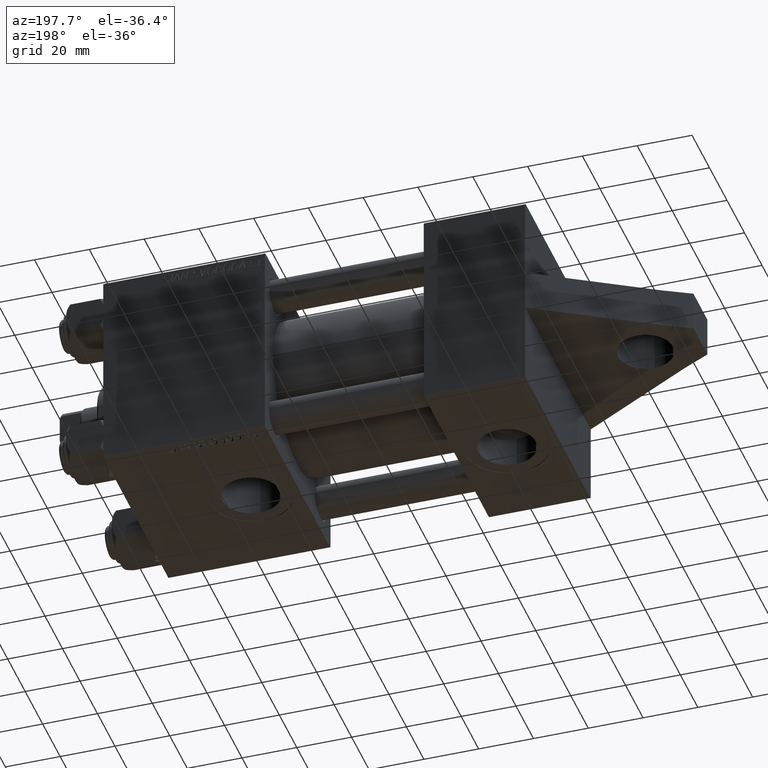
[diagram: clean part render]
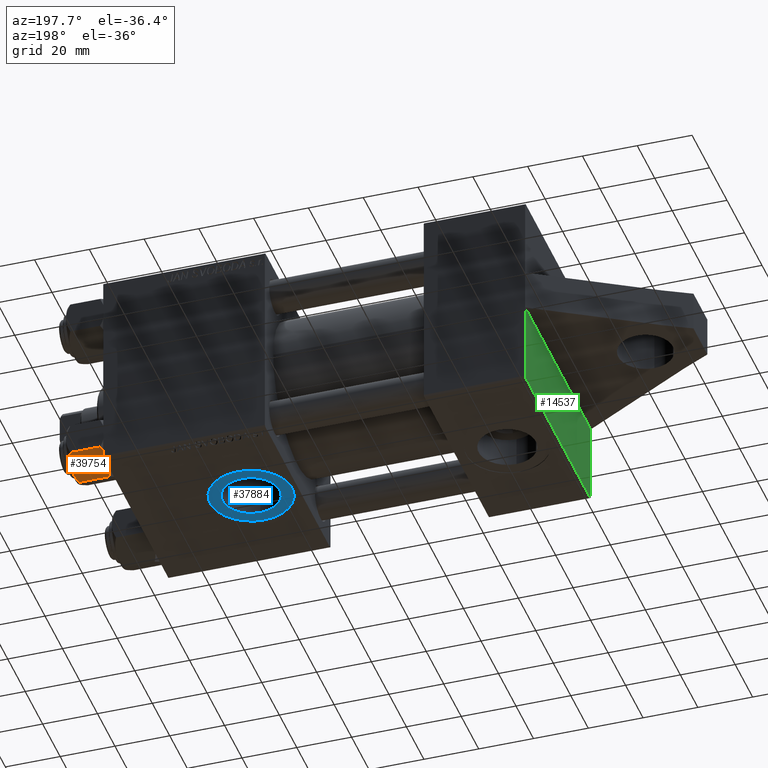
[diagram: same view with three faces highlighted in distinct colors, each labeled with its STEP entity id]
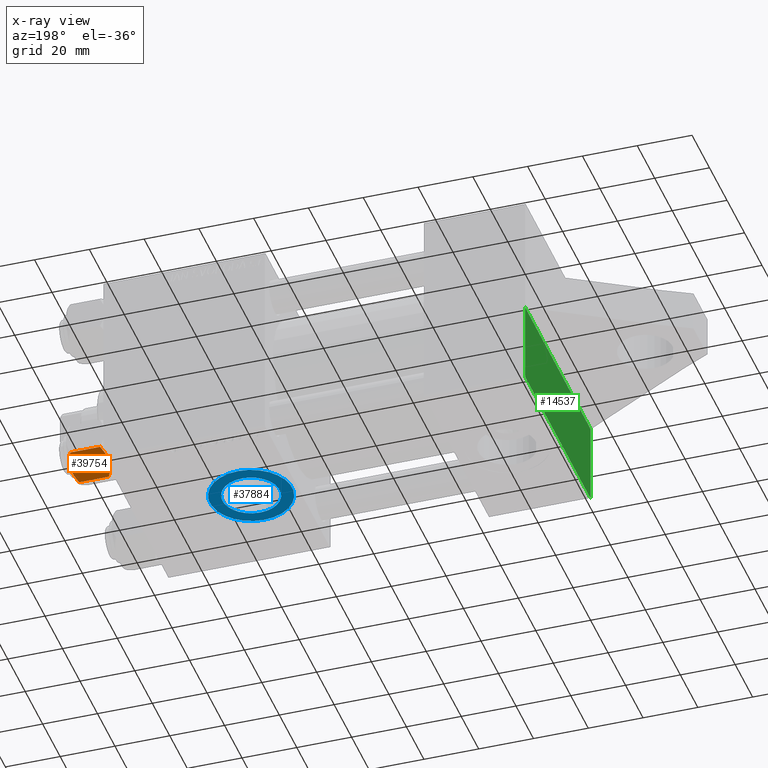
[diagram: x-ray of the same camera — body ghosted, the three highlighted faces saturated]
A machine part, auxiliary view with three faces highlighted in distinct colors.
The next image is the same camera in x-ray (body ghosted, the three faces saturated) — at least one of them is partly hidden behind the body in this view.
Their STEP definitions:

[orange] entity #39754 — the highlighted planar face has unit normal (-0, -0.5, 0.866).
#624 = EDGE_CURVE ( 'NONE', #19999, #41213, #6012, .T. ) ;
#1392 = CARTESIAN_POINT ( 'NONE',  ( 11.62000000000000099, -1.813166800014576593E-15, -14.00000000000000000 ) ) ;
#1588 = DIRECTION ( 'NONE',  ( -0.000000000000000000, -0.000000000000000000, 1.000000000000000000 ) ) ;
#2012 = CARTESIAN_POINT ( 'NONE',  ( 11.16445427487471775, -0.7890283410877989567, -12.89876091710046424 ) ) ;
#4204 = DIRECTION ( 'NONE',  ( -0.5000000000000001110, -0.8660254037844384856, 0.000000000000000000 ) ) ;
#4273 = CARTESIAN_POINT ( 'NONE',  ( 5.810000000000000497, -10.06321519197517667, -12.44321519197518633 ) ) ;
#5238 = CARTESIAN_POINT ( 'NONE',  ( 9.716999946243698005, -3.296092779912227932, -0.1545239700039841013 ) ) ;
#5506 = CARTESIAN_POINT ( 'NONE',  ( 11.62000000000000099, -1.795242522838921761E-15, -12.44321519197518455 ) ) ;
#5696 = CARTESIAN_POINT ( 'NONE',  ( 11.62000000000000099, -1.607967606633101042E-15, -1.556784808024815669 ) ) ;
#5931 = CARTESIAN_POINT ( 'NONE',  ( 8.715000000000001634, -5.031607595987590997, 0.000000000000000000 ) ) ;
#6012 = LINE ( 'NONE', #20210, #22670 ) ;
#6709 = B_SPLINE_CURVE_WITH_KNOTS ( 'NONE', 3,
 ( #44592, #41101, #23416, #38741, #24779, #42460, #25008, #24553 ),
 .UNSPECIFIED., .F., .F.,
 ( 4, 2, 2, 4 ),
 ( 2.544312114902182352E-07, 0.003011550106433538189, 0.004517197944044561847, 0.006022845781655586372 ),
 .UNSPECIFIED. ) ;
#6966 = VERTEX_POINT ( 'NONE', #11300 ) ;
#8250 = ORIENTED_EDGE ( 'NONE', *, *, #34425, .F. ) ;
#9224 = CARTESIAN_POINT ( 'NONE',  ( 8.715000000000001634, -5.031607595987590997, -14.00000000000000000 ) ) ;
#11093 = CARTESIAN_POINT ( 'NONE',  ( 8.715000000000001634, -5.031607595987590997, -14.00000000000000000 ) ) ;
#11300 = CARTESIAN_POINT ( 'NONE',  ( 11.62000000000000099, -1.607967606633101042E-15, -1.556784808024815669 ) ) ;
#12011 = CARTESIAN_POINT ( 'NONE',  ( 5.810000000000000497, -10.06321519197517667, -1.556784808024813671 ) ) ;
#14417 = VECTOR ( 'NONE', #28146, 1000.000000000000000 ) ;
#14673 = FACE_OUTER_BOUND ( 'NONE', #45535, .T. ) ;
#15186 = EDGE_CURVE ( 'NONE', #45697, #6966, #45800, .T. ) ;
#15529 = ORIENTED_EDGE ( 'NONE', *, *, #28154, .F. ) ;
#15709 = CARTESIAN_POINT ( 'NONE',  ( 10.69662495661650503, -1.599332489581334560, -0.7114554706434500497 ) ) ;
#16210 = CARTESIAN_POINT ( 'NONE',  ( 10.69859855102500745, -1.595914123792264050, -13.28585617404753094 ) ) ;
#16977 = LINE ( 'NONE', #45360, #14417 ) ;
#18303 = CARTESIAN_POINT ( 'NONE',  ( 5.810000000000000497, -10.06321519197517667, -12.44321519197518633 ) ) ;
#19999 = VERTEX_POINT ( 'NONE', #4273 ) ;
#20166 = CARTESIAN_POINT ( 'NONE',  ( 8.969430103550385169, -4.590921729663315354, -14.00000000000000533 ) ) ;
#20210 = CARTESIAN_POINT ( 'NONE',  ( 5.810000000000000497, -10.06321519197517667, -14.00000000000000000 ) ) ;
#22485 = CARTESIAN_POINT ( 'NONE',  ( 8.209704053696569304, -5.906805847843729751, -14.00000000000000711 ) ) ;
#22670 = VECTOR ( 'NONE', #1588, 1000.000000000000000 ) ;
#23416 = CARTESIAN_POINT ( 'NONE',  ( 6.731401448974986934, -8.467301068182914392, -0.7141438259524658383 ) ) ;
#23874 = CARTESIAN_POINT ( 'NONE',  ( 9.974696630283194310, -2.849749030213795997, -13.69973261901326289 ) ) ;
#24553 = CARTESIAN_POINT ( 'NONE',  ( 8.715000000000001634, -5.031607595987590997, 0.000000000000000000 ) ) ;
#24779 = CARTESIAN_POINT ( 'NONE',  ( 7.700834831386345058, -6.788193195293096949, -0.1903979688073415555 ) ) ;
#25008 = CARTESIAN_POINT ( 'NONE',  ( 8.460569896449618099, -5.472293462311865753, 1.694065894508600678E-15 ) ) ;
#25289 = CARTESIAN_POINT ( 'NONE',  ( 6.733375043383497349, -8.463882702393844326, -13.28854452935655139 ) ) ;
#26881 = CARTESIAN_POINT ( 'NONE',  ( 9.220295946303432189, -4.156409344131454020, 1.753358200816401307E-15 ) ) ;
#27373 = CARTESIAN_POINT ( 'NONE',  ( 9.729165168613654657, -3.275021996682085490, -13.80960203119266083 ) ) ;
#28146 = DIRECTION ( 'NONE',  ( -0.000000000000000000, -0.000000000000000000, 1.000000000000000000 ) ) ;
#28154 = EDGE_CURVE ( 'NONE', #41213, #45697, #6709, .T. ) ;
#28885 = DIRECTION ( 'NONE',  ( -0.8660254037844385966, 0.5000000000000002220, 0.000000000000000000 ) ) ;
#29261 = EDGE_CURVE ( 'NONE', #31021, #6966, #16977, .T. ) ;
#29506 = AXIS2_PLACEMENT_3D ( 'NONE', #1392, #28885, #4204 ) ;
#31021 = VERTEX_POINT ( 'NONE', #31480 ) ;
#31470 = EDGE_CURVE ( 'NONE', #31021, #44124, #34301, .T. ) ;
#31480 = CARTESIAN_POINT ( 'NONE',  ( 11.62000000000000099, -1.795242522838921761E-15, -12.44321519197518455 ) ) ;
#31759 = ORIENTED_EDGE ( 'NONE', *, *, #624, .F. ) ;
#32217 = ORIENTED_EDGE ( 'NONE', *, *, #31470, .F. ) ;
#34301 = B_SPLINE_CURVE_WITH_KNOTS ( 'NONE', 3,
 ( #5506, #2012, #16210, #23874, #27373, #41105, #20166, #9224 ),
 .UNSPECIFIED., .F., .F.,
 ( 4, 2, 2, 4 ),
 ( 2.544312114905217906E-07, 0.003011550106433539490, 0.004517197944044564449, 0.006022845781655588975 ),
 .UNSPECIFIED. ) ;
#34425 = EDGE_CURVE ( 'NONE', #44124, #19999, #40795, .T. ) ;
#36533 = ORIENTED_EDGE ( 'NONE', *, *, #15186, .F. ) ;
#37577 = CARTESIAN_POINT ( 'NONE',  ( 11.16498164529022574, -0.7881149087337310233, -1.101766453314954264 ) ) ;
#38741 = CARTESIAN_POINT ( 'NONE',  ( 7.455303369716810735, -7.213466161761385109, -0.3002673809867383303 ) ) ;
#39249 = CARTESIAN_POINT ( 'NONE',  ( 7.713000053756304375, -6.767122412062953174, -13.84547602999601601 ) ) ;
#39482 = CARTESIAN_POINT ( 'NONE',  ( 6.265018354709775750, -9.275100283241444643, -12.89823354668504507 ) ) ;
#39754 = ADVANCED_FACE ( 'NONE', ( #14673 ), #43062, .F. ) ;
#40795 = B_SPLINE_CURVE_WITH_KNOTS ( 'NONE', 3,
 ( #11093, #22485, #39249, #25289, #39482, #18303 ),
 .UNSPECIFIED., .F., .F.,
 ( 4, 2, 4 ),
 ( 0.006022845781655588975, 0.009013049135303635023, 0.01200325248895167674 ),
 .UNSPECIFIED. ) ;
#41101 = CARTESIAN_POINT ( 'NONE',  ( 6.265545725125283738, -9.274186850887380373, -1.101239082899531319 ) ) ;
#41105 = CARTESIAN_POINT ( 'NONE',  ( 9.227666995912104042, -4.143642311704127223, -13.96005881939309212 ) ) ;
#41213 = VERTEX_POINT ( 'NONE', #12011 ) ;
#42460 = CARTESIAN_POINT ( 'NONE',  ( 8.202333004087901003, -5.919572880271055659, -0.03994118060690762112 ) ) ;
#42988 = ORIENTED_EDGE ( 'NONE', *, *, #29261, .T. ) ;
#43062 = PLANE ( 'NONE',  #29506 ) ;
#43205 = CARTESIAN_POINT ( 'NONE',  ( 8.715000000000001634, -5.031607595987590997, 0.000000000000000000 ) ) ;
#44124 = VERTEX_POINT ( 'NONE', #45646 ) ;
#44592 = CARTESIAN_POINT ( 'NONE',  ( 5.810000000000000497, -10.06321519197517667, -1.556784808024813671 ) ) ;
#45360 = CARTESIAN_POINT ( 'NONE',  ( 11.62000000000000099, -1.813166800014576593E-15, -14.00000000000000000 ) ) ;
#45535 = EDGE_LOOP ( 'NONE', ( #32217, #42988, #36533, #15529, #31759, #8250 ) ) ;
#45646 = CARTESIAN_POINT ( 'NONE',  ( 8.715000000000001634, -5.031607595987590997, -14.00000000000000000 ) ) ;
#45697 = VERTEX_POINT ( 'NONE', #43205 ) ;
#45800 = B_SPLINE_CURVE_WITH_KNOTS ( 'NONE', 3,
 ( #5931, #26881, #5238, #15709, #37577, #5696 ),
 .UNSPECIFIED., .F., .F.,
 ( 4, 2, 4 ),
 ( 0.006022845781655586372, 0.009013049135303633289, 0.01200325248895168020 ),
 .UNSPECIFIED. ) ;

[blue] entity #37884 — the highlighted planar face has unit normal (-0, 0, -1).
#850 = CARTESIAN_POINT ( 'NONE',  ( 112.0000000000000000, -37.29999999999999716, 15.00000000000001421 ) ) ;
#1590 = CARTESIAN_POINT ( 'NONE',  ( 112.0000000000000000, -37.29999999999999716, -10.47999999999999687 ) ) ;
#1630 = DIRECTION ( 'NONE',  ( 0.000000000000000000, -1.000000000000000000, -8.673617379884036705E-17 ) ) ;
#2243 = CARTESIAN_POINT ( 'NONE',  ( 112.0000000000000000, -37.29999999999999716, 3.486794186713383443E-15 ) ) ;
#2469 = DIRECTION ( 'NONE',  ( 0.000000000000000000, -1.000000000000000000, -8.673617379884036705E-17 ) ) ;
#2778 = ORIENTED_EDGE ( 'NONE', *, *, #33993, .T. ) ;
#4161 = AXIS2_PLACEMENT_3D ( 'NONE', #35110, #28134, #30936 ) ;
#5776 = ORIENTED_EDGE ( 'NONE', *, *, #16492, .T. ) ;
#5953 = EDGE_CURVE ( 'NONE', #22447, #29925, #13183, .T. ) ;
#6646 = CARTESIAN_POINT ( 'NONE',  ( 112.0000000000000000, -37.29999999999999716, 3.486794186713383443E-15 ) ) ;
#9570 = VERTEX_POINT ( 'NONE', #14921 ) ;
#9693 = FACE_BOUND ( 'NONE', #23682, .T. ) ;
#10852 = ORIENTED_EDGE ( 'NONE', *, *, #32897, .F. ) ;
#12565 = DIRECTION ( 'NONE',  ( 0.000000000000000000, 0.000000000000000000, -1.000000000000000000 ) ) ;
#13183 = CIRCLE ( 'NONE', #22102, 10.48000000000000043 ) ;
#14921 = CARTESIAN_POINT ( 'NONE',  ( 112.0000000000000000, -37.29999999999999716, -15.00000000000000888 ) ) ;
#15387 = CARTESIAN_POINT ( 'NONE',  ( 112.0000000000000000, -37.29999999999999716, 10.48000000000000398 ) ) ;
#16447 = DIRECTION ( 'NONE',  ( 0.000000000000000000, 8.673617379884036705E-17, -1.000000000000000000 ) ) ;
#16492 = EDGE_CURVE ( 'NONE', #9570, #41163, #19344, .T. ) ;
#18949 = AXIS2_PLACEMENT_3D ( 'NONE', #19331, #1630, #12565 ) ;
#19331 = CARTESIAN_POINT ( 'NONE',  ( 112.0000000000000000, -37.29999999999999716, 3.486794186713383443E-15 ) ) ;
#19344 = CIRCLE ( 'NONE', #44617, 15.00000000000001243 ) ;
#20171 = DIRECTION ( 'NONE',  ( 0.000000000000000000, 0.000000000000000000, -1.000000000000000000 ) ) ;
#20614 = FACE_OUTER_BOUND ( 'NONE', #29755, .T. ) ;
#21907 = CIRCLE ( 'NONE', #4161, 10.48000000000000043 ) ;
#22102 = AXIS2_PLACEMENT_3D ( 'NONE', #6646, #2469, #20171 ) ;
#22447 = VERTEX_POINT ( 'NONE', #1590 ) ;
#23682 = EDGE_LOOP ( 'NONE', ( #41567, #10852 ) ) ;
#23877 = DIRECTION ( 'NONE',  ( 0.000000000000000000, -1.000000000000000000, -8.673617379884036705E-17 ) ) ;
#26970 = CARTESIAN_POINT ( 'NONE',  ( 112.0000000000000000, -37.29999999999999716, 3.486794186713383443E-15 ) ) ;
#27198 = DIRECTION ( 'NONE',  ( 0.000000000000000000, -1.000000000000000000, -8.673617379884036705E-17 ) ) ;
#27979 = AXIS2_PLACEMENT_3D ( 'NONE', #2243, #23877, #16447 ) ;
#28134 = DIRECTION ( 'NONE',  ( 0.000000000000000000, -1.000000000000000000, -8.673617379884036705E-17 ) ) ;
#29755 = EDGE_LOOP ( 'NONE', ( #5776, #2778 ) ) ;
#29925 = VERTEX_POINT ( 'NONE', #15387 ) ;
#30463 = DIRECTION ( 'NONE',  ( 0.000000000000000000, 0.000000000000000000, -1.000000000000000000 ) ) ;
#30936 = DIRECTION ( 'NONE',  ( 0.000000000000000000, 0.000000000000000000, -1.000000000000000000 ) ) ;
#32326 = CIRCLE ( 'NONE', #18949, 15.00000000000001243 ) ;
#32897 = EDGE_CURVE ( 'NONE', #29925, #22447, #21907, .T. ) ;
#33993 = EDGE_CURVE ( 'NONE', #41163, #9570, #32326, .T. ) ;
#35110 = CARTESIAN_POINT ( 'NONE',  ( 112.0000000000000000, -37.29999999999999716, 3.486794186713383443E-15 ) ) ;
#37884 = ADVANCED_FACE ( 'NONE', ( #9693, #20614 ), #41340, .T. ) ;
#41163 = VERTEX_POINT ( 'NONE', #850 ) ;
#41340 = PLANE ( 'NONE',  #27979 ) ;
#41567 = ORIENTED_EDGE ( 'NONE', *, *, #5953, .F. ) ;
#44617 = AXIS2_PLACEMENT_3D ( 'NONE', #26970, #27198, #30463 ) ;

[green] entity #14537 — the highlighted planar face has unit normal (-1, -0, 0).
#225 = ORIENTED_EDGE ( 'NONE', *, *, #10451, .T. ) ;
#469 = DIRECTION ( 'NONE',  ( -0.000000000000000000, 0.000000000000000000, 1.000000000000000000 ) ) ;
#3962 = PLANE ( 'NONE',  #16321 ) ;
#6276 = VERTEX_POINT ( 'NONE', #27096 ) ;
#6945 = CARTESIAN_POINT ( 'NONE',  ( 0.000000000000000000, -37.24999999999975842, -37.25000000000027001 ) ) ;
#7463 = CARTESIAN_POINT ( 'NONE',  ( 0.000000000000000000, 0.000000000000000000, 0.000000000000000000 ) ) ;
#7803 = ORIENTED_EDGE ( 'NONE', *, *, #18511, .T. ) ;
#9364 = DIRECTION ( 'NONE',  ( 0.000000000000000000, 0.000000000000000000, -1.000000000000000000 ) ) ;
#9431 = ORIENTED_EDGE ( 'NONE', *, *, #11079, .T. ) ;
#10451 = EDGE_CURVE ( 'NONE', #6276, #22516, #16905, .T. ) ;
#10832 = ORIENTED_EDGE ( 'NONE', *, *, #37096, .F. ) ;
#10931 = VERTEX_POINT ( 'NONE', #14266 ) ;
#11079 = EDGE_CURVE ( 'NONE', #31137, #6276, #37756, .T. ) ;
#14221 = CARTESIAN_POINT ( 'NONE',  ( -0.000000000000000000, -37.25000000000000000, 37.25000000000000000 ) ) ;
#14266 = CARTESIAN_POINT ( 'NONE',  ( 0.000000000000000000, -37.00000000000000711, 37.49999999999999289 ) ) ;
#14322 = DIRECTION ( 'NONE',  ( 0.000000000000000000, -1.000000000000000000, -9.251858538542972814E-17 ) ) ;
#14537 = ADVANCED_FACE ( 'NONE', ( #25142 ), #3962, .T. ) ;
#14612 = DIRECTION ( 'NONE',  ( 0.000000000000000000, -0.7071067811865524577, 0.7071067811865426878 ) ) ;
#15652 = VERTEX_POINT ( 'NONE', #30679 ) ;
#16321 = AXIS2_PLACEMENT_3D ( 'NONE', #7463, #35849, #469 ) ;
#16905 = LINE ( 'NONE', #24805, #29569 ) ;
#18511 = EDGE_CURVE ( 'NONE', #22516, #22894, #39524, .T. ) ;
#19636 = ORIENTED_EDGE ( 'NONE', *, *, #22502, .F. ) ;
#20230 = EDGE_CURVE ( 'NONE', #15652, #10931, #38670, .T. ) ;
#20598 = ORIENTED_EDGE ( 'NONE', *, *, #20230, .T. ) ;
#20658 = CARTESIAN_POINT ( 'NONE',  ( 0.000000000000000000, 37.49999999999999289, 37.50000000000000000 ) ) ;
#22502 = EDGE_CURVE ( 'NONE', #31137, #10931, #23467, .T. ) ;
#22516 = VERTEX_POINT ( 'NONE', #34847 ) ;
#22894 = VERTEX_POINT ( 'NONE', #45717 ) ;
#23467 = LINE ( 'NONE', #20658, #33577 ) ;
#24805 = CARTESIAN_POINT ( 'NONE',  ( 0.000000000000000000, 37.49999999999999289, -37.50000000000000000 ) ) ;
#25142 = FACE_OUTER_BOUND ( 'NONE', #30909, .T. ) ;
#26888 = VECTOR ( 'NONE', #31457, 1000.000000000000114 ) ;
#27096 = CARTESIAN_POINT ( 'NONE',  ( 0.000000000000000000, -7.500000000000000000, -37.50000000000000711 ) ) ;
#28110 = VECTOR ( 'NONE', #9364, 1000.000000000000000 ) ;
#29569 = VECTOR ( 'NONE', #14322, 1000.000000000000000 ) ;
#30679 = CARTESIAN_POINT ( 'NONE',  ( 0.000000000000000000, -37.50000000000000711, 36.99999999999999289 ) ) ;
#30909 = EDGE_LOOP ( 'NONE', ( #19636, #9431, #225, #7803, #10832, #20598 ) ) ;
#31137 = VERTEX_POINT ( 'NONE', #43098 ) ;
#31457 = DIRECTION ( 'NONE',  ( -0.000000000000000000, 0.7071067811865474617, 0.7071067811865474617 ) ) ;
#33577 = VECTOR ( 'NONE', #41829, 1000.000000000000000 ) ;
#34847 = CARTESIAN_POINT ( 'NONE',  ( 0.000000000000000000, -37.00000000000002132, -37.50000000000000711 ) ) ;
#35849 = DIRECTION ( 'NONE',  ( -1.000000000000000000, 0.000000000000000000, -0.000000000000000000 ) ) ;
#37096 = EDGE_CURVE ( 'NONE', #15652, #22894, #45408, .T. ) ;
#37756 = LINE ( 'NONE', #41241, #28110 ) ;
#37984 = DIRECTION ( 'NONE',  ( 0.000000000000000000, 9.251858538542971581E-17, -1.000000000000000000 ) ) ;
#38670 = LINE ( 'NONE', #14221, #26888 ) ;
#39503 = VECTOR ( 'NONE', #14612, 1000.000000000000000 ) ;
#39524 = LINE ( 'NONE', #6945, #39503 ) ;
#41241 = CARTESIAN_POINT ( 'NONE',  ( 0.000000000000000000, -7.500000000000000000, 37.49999999999999289 ) ) ;
#41829 = DIRECTION ( 'NONE',  ( 0.000000000000000000, -1.000000000000000000, -9.251858538542971581E-17 ) ) ;
#43098 = CARTESIAN_POINT ( 'NONE',  ( 0.000000000000000000, -7.500000000000000000, 37.49999999999999289 ) ) ;
#44957 = CARTESIAN_POINT ( 'NONE',  ( 0.000000000000000000, -37.50000000000000711, 37.49999999999999289 ) ) ;
#45408 = LINE ( 'NONE', #44957, #45802 ) ;
#45717 = CARTESIAN_POINT ( 'NONE',  ( 0.000000000000000000, -37.50000000000000000, -37.00000000000003553 ) ) ;
#45802 = VECTOR ( 'NONE', #37984, 1000.000000000000000 ) ;